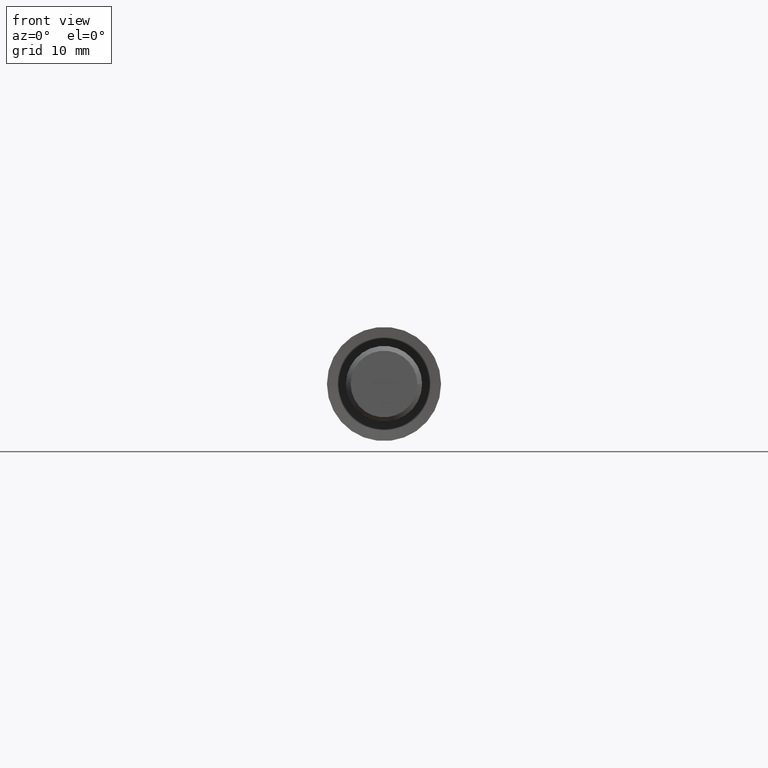
[diagram: clean part render]
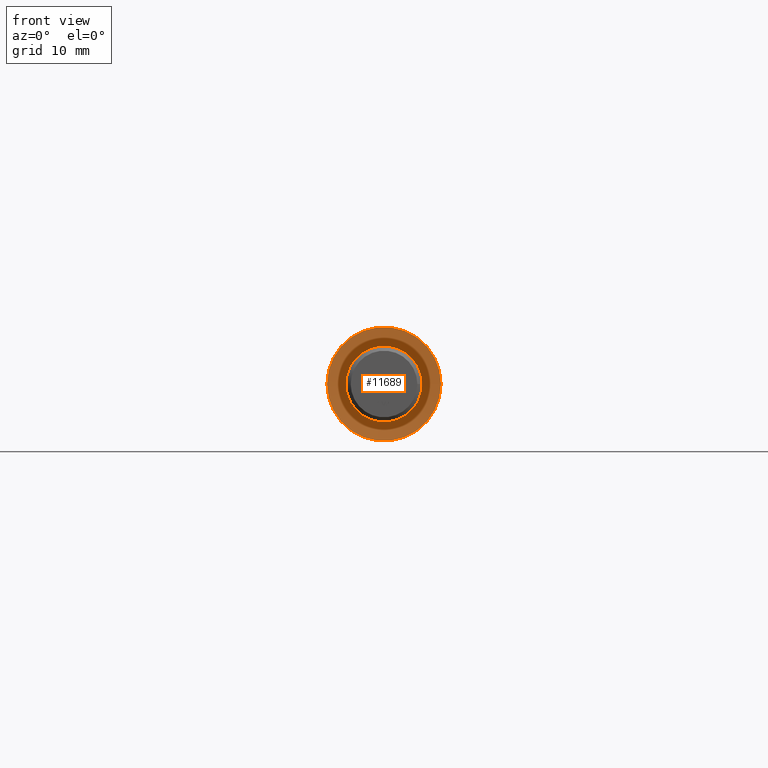
[diagram: same view with one face highlighted and labeled with its STEP entity id]
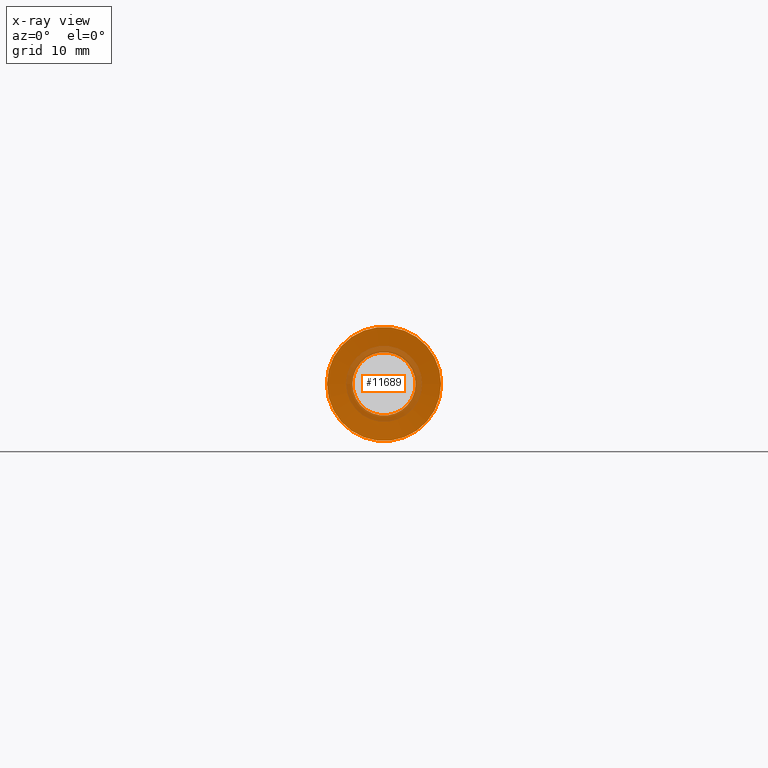
[diagram: x-ray of the same camera — body ghosted, the highlighted face saturated]
A machine part, front view. The second image highlights one B-rep face of the part: STEP entity #11689.
The next image is the same camera in x-ray: the body ghosted, the highlighted face saturated — about 20% of this face is hidden behind the body in this view.
In plain terms, the highlighted conical surface has half-angle 85 deg.
Its self-contained STEP definition (entity closure, byte-faithful):
#596 = EDGE_CURVE ( 'NONE', #6096, #6096, #2742, .T. ) ;
#841 = EDGE_LOOP ( 'NONE', ( #2788 ) ) ;
#1377 = CARTESIAN_POINT ( 'NONE',  ( 1.534723156630859408E-31, 0.2344633132870081738, 0.000000000000000000 ) ) ;
#2742 = CIRCLE ( 'NONE', #13307, 6.000000000000009770 ) ;
#2788 = ORIENTED_EDGE ( 'NONE', *, *, #3867, .F. ) ;
#3296 = VERTEX_POINT ( 'NONE', #12223 ) ;
#3867 = EDGE_CURVE ( 'NONE', #3296, #3296, #8980, .T. ) ;
#3935 = DIRECTION ( 'NONE',  ( 2.567906592516314585E-33, -1.000000000000000000, -0.000000000000000000 ) ) ;
#5167 = DIRECTION ( 'NONE',  ( 1.000000000000000000, 0.000000000000000000, 0.000000000000000000 ) ) ;
#5762 = AXIS2_PLACEMENT_3D ( 'NONE', #12357, #3935, #5167 ) ;
#6096 = VERTEX_POINT ( 'NONE', #10152 ) ;
#6274 = CONICAL_SURFACE ( 'NONE', #8266, 3.320072066050799187, 1.483529864195179737 ) ;
#6664 = ORIENTED_EDGE ( 'NONE', *, *, #596, .T. ) ;
#8266 = AXIS2_PLACEMENT_3D ( 'NONE', #1377, #12833, #8654 ) ;
#8654 = DIRECTION ( 'NONE',  ( 1.000000000000000000, 0.000000000000000000, 0.000000000000000000 ) ) ;
#8936 = FACE_BOUND ( 'NONE', #841, .T. ) ;
#8980 = CIRCLE ( 'NONE', #5762, 3.320072066050799187 ) ;
#9557 = DIRECTION ( 'NONE',  ( 1.000000000000000000, 2.567906592516314243E-33, 0.000000000000000000 ) ) ;
#10152 = CARTESIAN_POINT ( 'NONE',  ( 6.000000000000009770, 1.540743955509791146E-32, 0.000000000000000000 ) ) ;
#10349 = EDGE_LOOP ( 'NONE', ( #6664 ) ) ;
#10704 = DIRECTION ( 'NONE',  ( 2.567906592516314585E-33, -1.000000000000000000, -0.000000000000000000 ) ) ;
#11240 = FACE_OUTER_BOUND ( 'NONE', #10349, .T. ) ;
#11689 = ADVANCED_FACE ( 'NONE', ( #11240, #8936 ), #6274, .F. ) ;
#12223 = CARTESIAN_POINT ( 'NONE',  ( 3.320072066050799187, 0.2344633132870081738, 0.000000000000000000 ) ) ;
#12357 = CARTESIAN_POINT ( 'NONE',  ( 1.534723156630859408E-31, 0.2344633132870081738, 0.000000000000000000 ) ) ;
#12833 = DIRECTION ( 'NONE',  ( 2.567906592516314585E-33, -1.000000000000000000, -0.000000000000000000 ) ) ;
#12916 = CARTESIAN_POINT ( 'NONE',  ( 1.540743955509788682E-31, 0.000000000000000000, 0.000000000000000000 ) ) ;
#13307 = AXIS2_PLACEMENT_3D ( 'NONE', #12916, #10704, #9557 ) ;